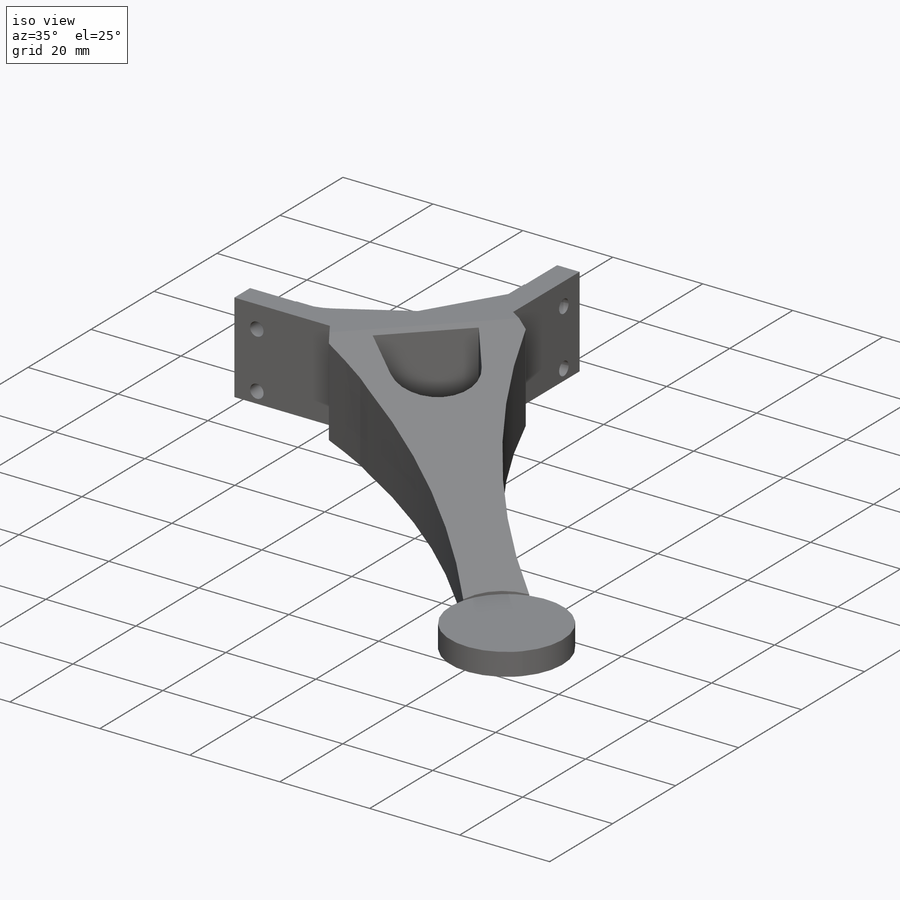
[diagram: iso view]
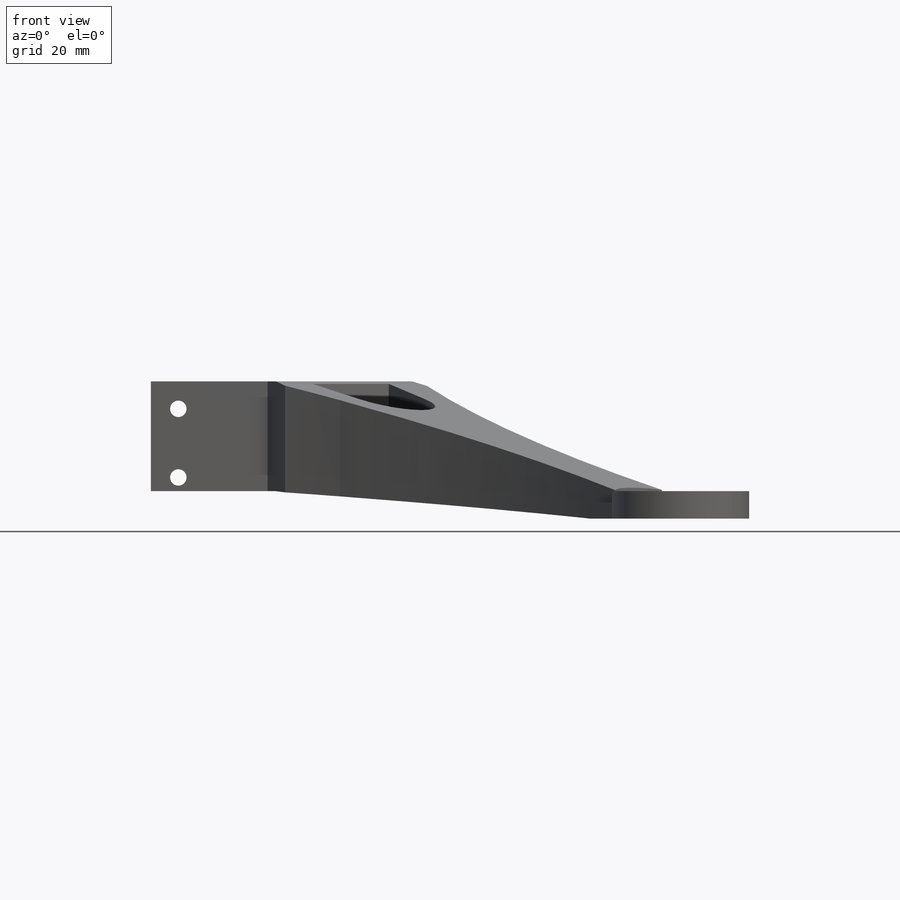
[diagram: front view]
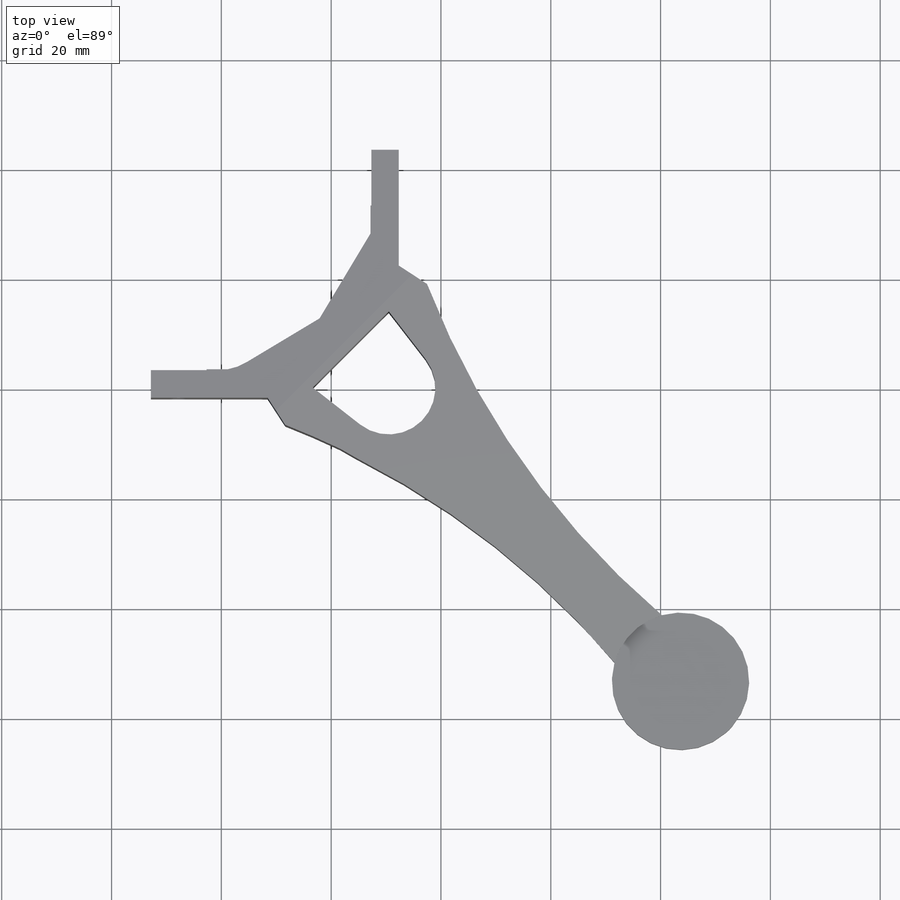
[diagram: top view]
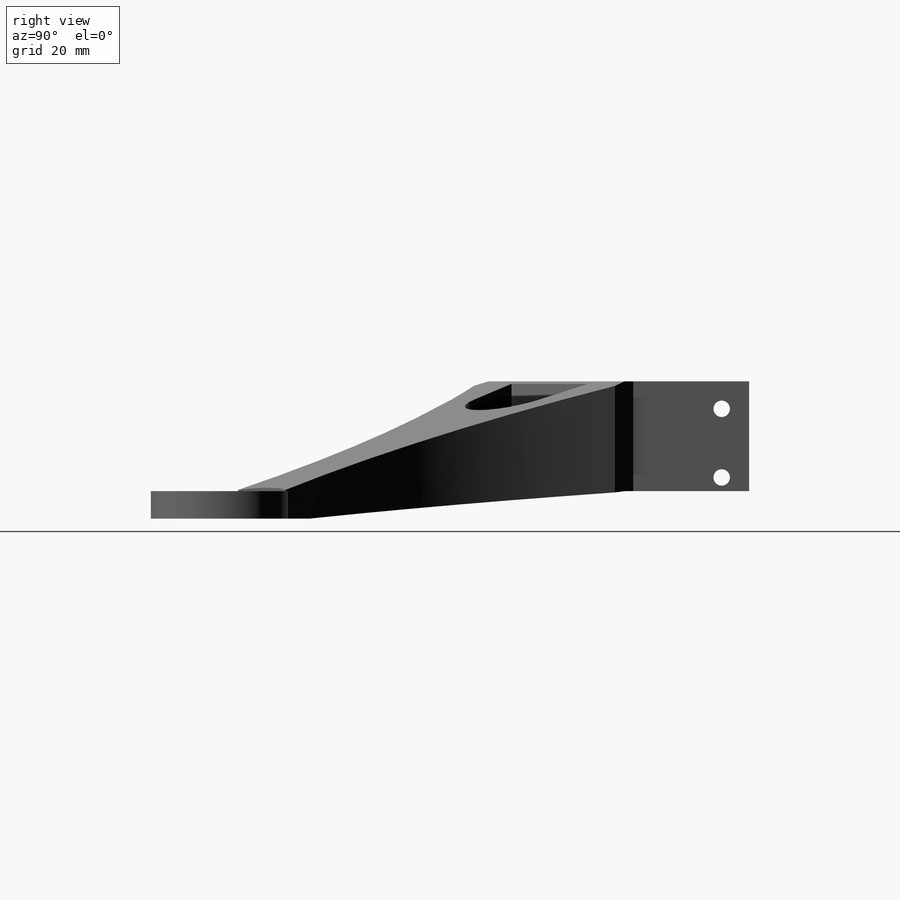
[diagram: right view]
SOLIDWORKS PART (.sldprt)
format: sldprt  version: not decoded by parser v0  size: 387,072 bytes
history: native  units: mm
features: sketch x9, cut_extrude x5, extrude x4, fillet x3, chamfer x2, material x1, mirror x1 (+13 scaffold rows collapsed)
feature tree (38):
  scaffold x13  (default folders/planes/origin — collapsed)
  material  "Material <not specified>"
  sketch  "Sketch1"  dims[c1.D10=~86.216928mm c1.D13=~86.500949mm c1.D15=300.0mm c1.D1=15.0mm c1.D2=5.0mm c1.D3=15.0mm c1.D4=5.0mm c1.D5=25.0mm c1.D6=25.0mm c1.D7=15.0mm c1.D8=15.0mm c1.D9=30.0mm c2.D10=50.0mm c2.D11=50.0mm c2.D12=30.0mm c3.D11=~56.568542mm c3.D9=90.0mm c3.D10=155.0mm c4.D11=155.0mm c4.D12=0.0mm c4.D13=155.0mm c4.D14=155.0mm]
  extrude  "Boss-Extrude3"  Depth=25mm
  chamfer  "Chamfer2"  Distance=6mm Angle=33deg
  fillet  "Fillet2"  Radius=30mm
  sketch  "Sketch2"  dims[c1.D1=~1.888312mm c1.D3=~0.782535mm c2.D1=20.0mm c2.D2=35.0mm c2.D3=12.5mm]
  cut_extrude  "Cut-Extrude1"  Depth=25mm
  sketch  "Sketch3"  dims[c1.D1=~2.267945mm c1.D3=~1.597301mm c2.D1=25.0mm c2.D2=5.0mm c2.D3=12.5mm]
  cut_extrude  "Cut-Extrude2"  Depth=25mm
  sketch  "Sketch4"  dims[c1.D1=7.5mm c1.D2=12.5mm c1.D3=8.0mm c1.D4=16.0mm c1.D5=17.5mm c1.D6=17.5mm c1.D7=27.5mm c1.D8=~21.454597mm c2.D7=20.0mm c2.D8=20.0mm]
  cut_extrude  "Cut-Extrude4"  Depth=25mm
  fillet  "Fillet3"  Radius=6mm
  sketch  "Sketch7"
  extrude  "Boss-Extrude4"  Depth=25mm
  sketch  "Sketch10"  dims[D1=22.5mm D2=30.0mm D3=5.0mm D4=20.0mm]
  cut_extrude  "Cut-Extrude6"  Depth=100mm
  sketch  "Sketch11"  dims[D1=12.5mm]
  extrude  "Boss-Extrude5"  [1 undecoded]
  sketch  "Sketch12"
  cut_extrude  "Cut-Extrude7"  Depth=100mm
  fillet  "Fillet5"  Radius=10mm
  sketch  "Sketch13"
  extrude  "Boss-Extrude6"  Depth=6mm
  mirror  "Mirror2"
  chamfer  "Chamfer3"  Distance=6mm Angle=33deg
decode coverage: 19 of 24 modeling features carry decoded parameters
note: ~ marks probable driven/reference dimensions
note: 1 parameter value undecoded
note: suppression state not decoded; provenance and decode notes live in map.json
